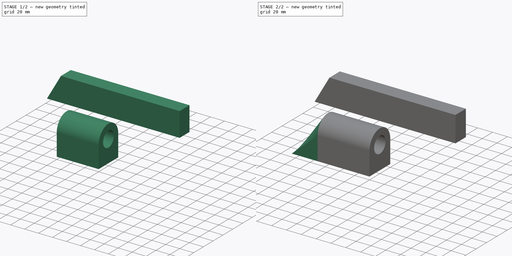
[diagram: build sequence overview — one tinted view per stage of 2, left to right]
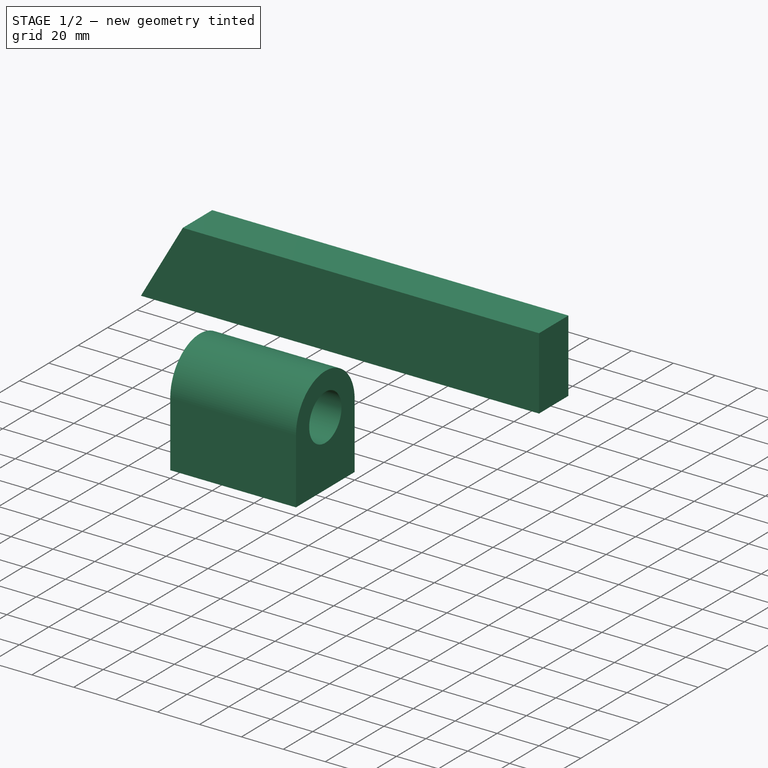
[diagram: stage 1 of 2 — iso view after this stage's code; geometry added in this stage tinted green]
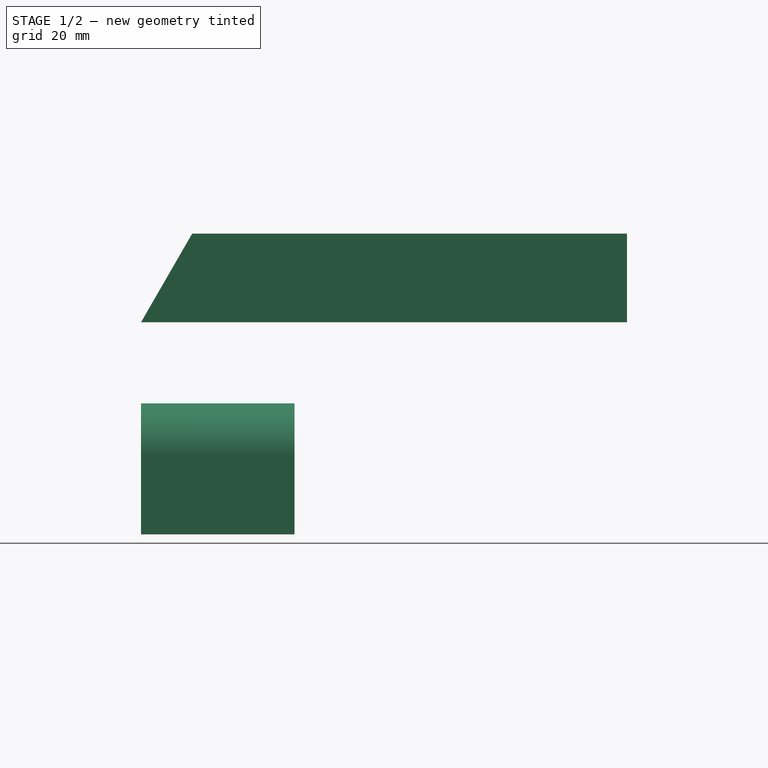
[diagram: stage 1 of 2 — front view after this stage's code; geometry added in this stage tinted green]
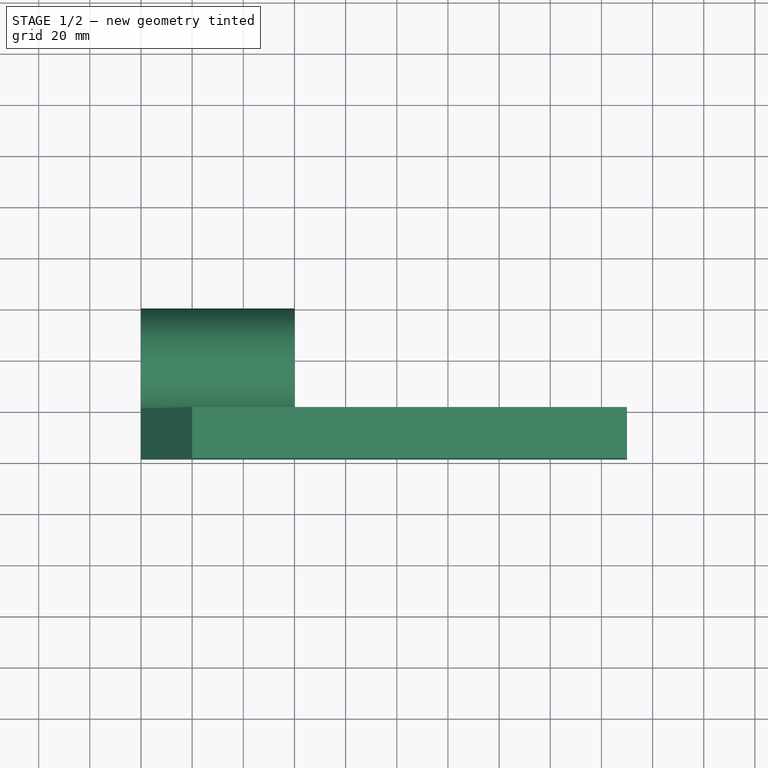
[diagram: stage 1 of 2 — top view after this stage's code; geometry added in this stage tinted green]
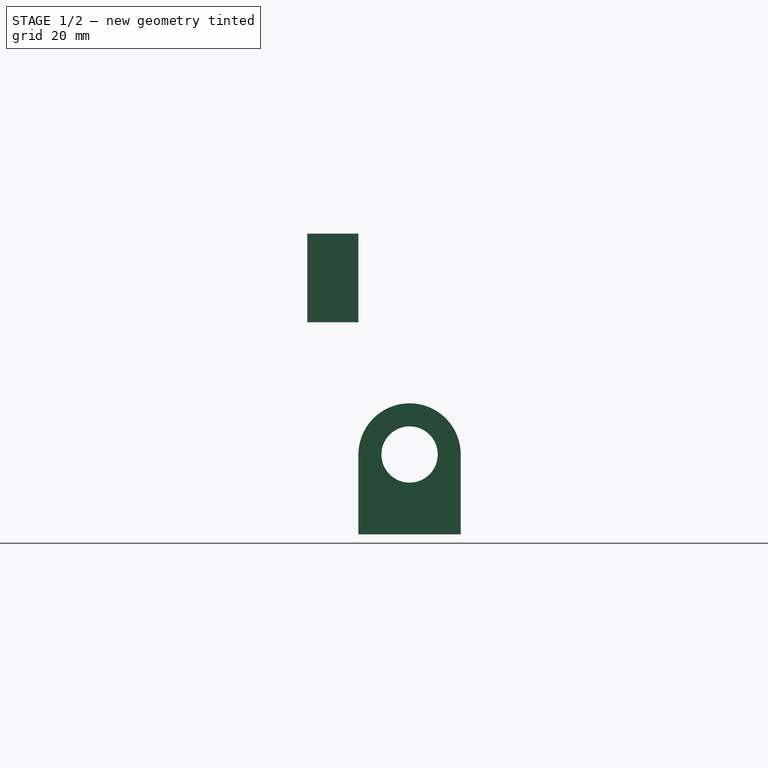
[diagram: stage 1 of 2 — right view after this stage's code; geometry added in this stage tinted green]
FCSTD DOCUMENT  (FreeCAD 0.21R33771 (Git))
Label: Tagger3_test
License: All rights reserved
LicenseURL: http://en.wikipedia.org/wiki/All_rights_reserved
objects: Sketcher::SketchObject×6, PartDesign::Pad×3, PartDesign::Body×3, App::Link×2, App::FeaturePython×2, PartDesign::AdditiveLoft×1
note: 17 computed .brp shape members not serialized (recipe doc carries the construction recipe); baked Part::Feature solids carry a one-line shape summary decoded from their .brp

FEATURE [Sketcher::SketchObject] Sketch
  FullyConstrained = false
  MapMode = 5
  Placement = pos=(0,0,0) rot=(1,0,0;1.5708rad)
  sketch-geometry (4):
    g0: LineSegment StartX=0 StartY=82.8841 StartZ=0 EndX=20 EndY=117.525 EndZ=0
    g1: LineSegment StartX=20 StartY=117.525 StartZ=0 EndX=190 EndY=117.525 EndZ=0
    g2: LineSegment StartX=190 StartY=117.525 StartZ=0 EndX=190 EndY=82.8841 EndZ=0
    g3: LineSegment StartX=0 StartY=82.8841 StartZ=0 EndX=190 EndY=82.8841 EndZ=0
  constraints (11):
    c: Coincident(g0,g1)
    c: Horizontal(g1)
    c: Coincident(g1,g2)
    c: Vertical(g2)
    c: Distance(g0,g0) = 40
    c: DistanceX(g1,g1) = 170
    c: Horizontal(g3)
    c: Coincident(g3,g2)
    c: Coincident(g3,g0)
    c: PointOnObject(g0,g-2)
    c: Angle(g3,g0) = 1.0472
FEATURE [PartDesign::Pad] Pad
  Direction = (0,-1,2e-16)
  Length = 20
  Length2 = 10
  Placement = pos=(0,0,0) rot=(1,0,0;1.5708rad)
  Profile = -> Sketch
  ReferenceAxis = -> Sketch [N_Axis]
  Refine = true
  Type = 0
FEATURE [PartDesign::Body] Body  label="Barrel_left"
  Group = -> [Sketch,Pad]
  Origin = -> Origin001
  Tip = -> Pad
FEATURE [Sketcher::SketchObject] Sketch001
  FullyConstrained = true
  MapMode = 5
  Placement = pos=(0,0,0) rot=(1,0,0;1.5708rad)
  sketch-geometry (4):
    g0: LineSegment StartX=0 StartY=0 StartZ=0 EndX=38.0356 EndY=81.5677 EndZ=0
    g1: LineSegment StartX=38.0356 StartY=81.5677 StartZ=0 EndX=68.0356 EndY=81.5677 EndZ=0
    g2: LineSegment StartX=68.0356 StartY=81.5677 StartZ=0 EndX=30 EndY=0 EndZ=0
    g3: LineSegment StartX=30 StartY=0 StartZ=0 EndX=0 EndY=0 EndZ=0
  constraints (11):
    c: Coincident(g0,g-1)
    c: Coincident(g1,g0)
    c: Horizontal(g1)
    c: Coincident(g2,g1)
    c: Coincident(g3,g2)
    c: Coincident(g3,g0)
    c: Horizontal(g3)
    c: Parallel(g0,g2)
    c: DistanceX(g3,g3) = 30
    c: Distance(g0,g0) = 90
    c: Angle(g3,g0) = 1.13446
FEATURE [Sketcher::SketchObject] Sketch002
  FullyConstrained = false
  MapMode = 5
  Placement = pos=(0,0,0) rot=(0.57735,0.57735,0.57735;2.0944rad)
  sketch-geometry (5):
    g0: LineSegment StartX=0 StartY=0 StartZ=0 EndX=40 EndY=0 EndZ=0
    g1: LineSegment StartX=40 StartY=0 StartZ=0 EndX=40 EndY=31.2 EndZ=0
    g2: LineSegment StartX=0 StartY=0 StartZ=0 EndX=0 EndY=31.2 EndZ=0
    g3: Circle CenterX=20 CenterY=31.2 CenterZ=0 NormalX=0 NormalY=0 NormalZ=1 AngleXU=0 Radius=11
    g4: ArcOfCircle CenterX=20 CenterY=31.2 CenterZ=0 NormalX=0 NormalY=0 NormalZ=1 AngleXU=0 Radius=20 StartAngle=0 EndAngle=3.14159
  constraints (12):
    c: Coincident(g0,g-1)
    c: PointOnObject(g0,g-1)
    c: Coincident(g1,g0)
    c: Vertical(g1)
    c: Coincident(g2,g0)
    c: PointOnObject(g2,g-2)
    c: Coincident(g4,g1)
    c: Diameter(g3) = 22
    c: Coincident(g4,g3)
    c: DistanceX(g0,g0) = 40
    c: Tangent(g4,g2) = 1.5708
    c: Equal(g1,g2)
FEATURE [PartDesign::Pad] Pad002
  Direction = (1,0,0)
  Length = 60
  Length2 = 10
  Placement = pos=(0,0,0) rot=(0.57735,0.57735,0.57735;2.0944rad)
  Profile = -> Sketch002
  ReferenceAxis = -> Sketch002 [N_Axis]
  Refine = true
  Type = 0
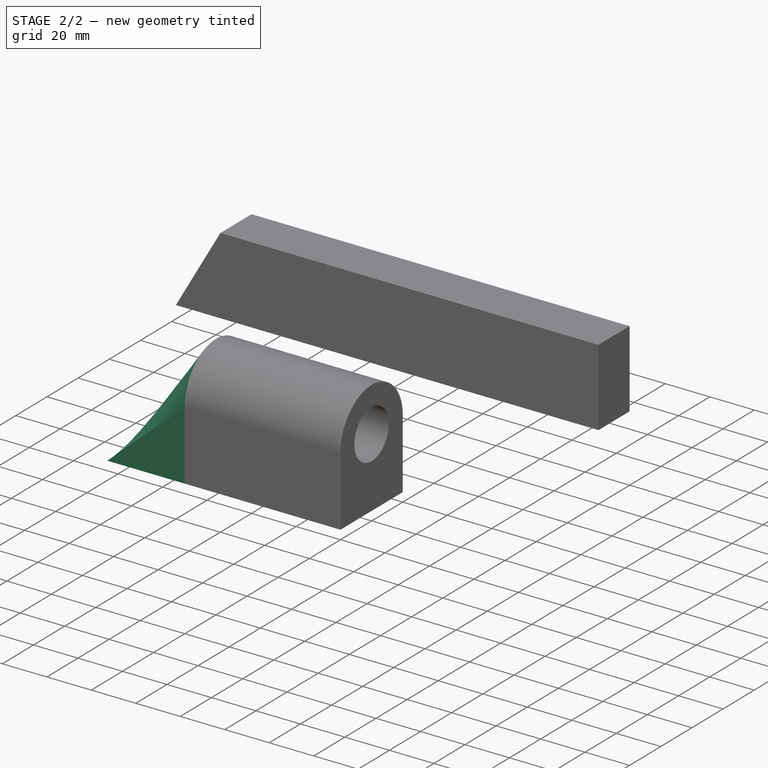
[diagram: stage 2 of 2 — iso view after this stage's code; geometry added in this stage tinted green]
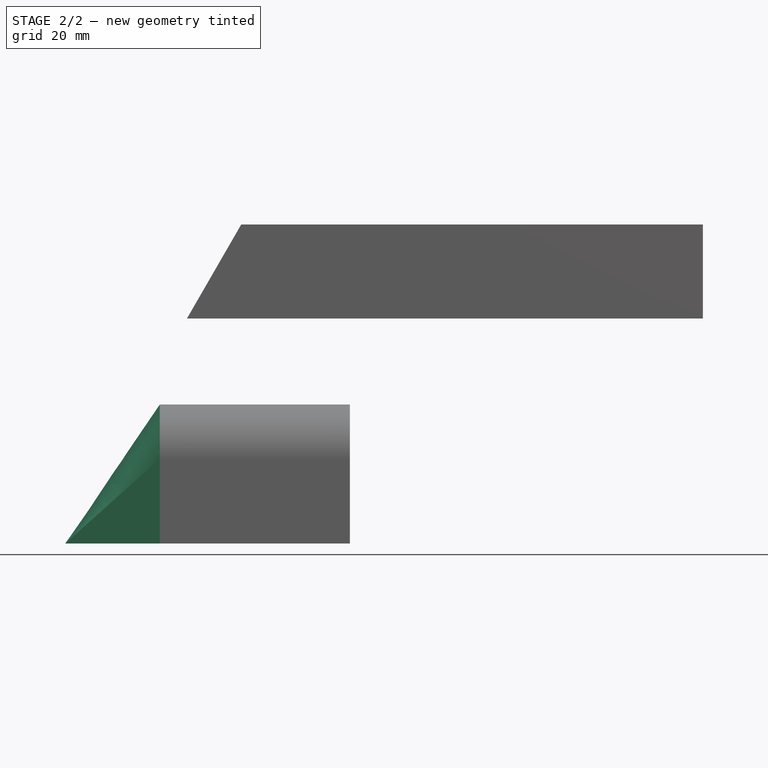
[diagram: stage 2 of 2 — front view after this stage's code; geometry added in this stage tinted green]
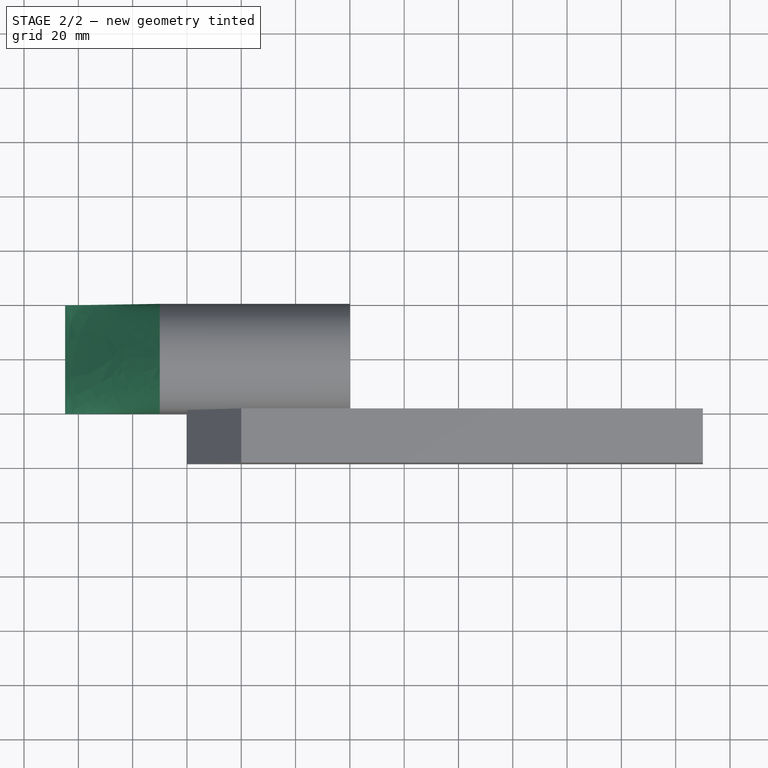
[diagram: stage 2 of 2 — top view after this stage's code; geometry added in this stage tinted green]
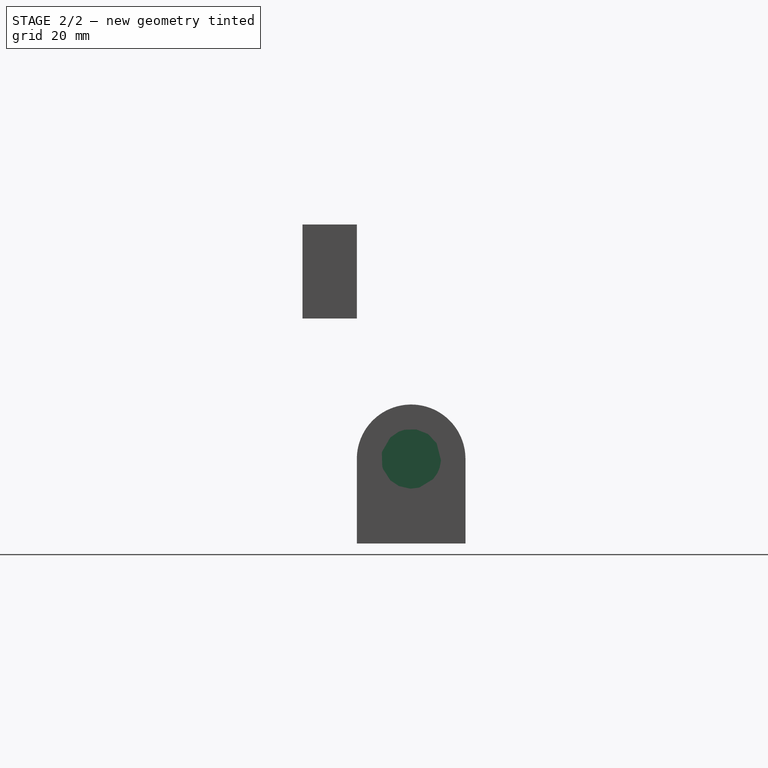
[diagram: stage 2 of 2 — right view after this stage's code; geometry added in this stage tinted green]
FEATURE [App::Link] Grip2  label="Grip002"
  LinkPlacement = pos=(-7.5737,20,1.15e-14) rot=(1,0,0;3.14159rad)
  LinkedObject = -> Body002
  Placement = pos=(-7.5737,20,1.15e-14) rot=(1,0,0;3.14159rad)
FEATURE [Sketcher::SketchObject] Sketch004
  ExternalGeometry = -> [Pad002,Sketch002]
  FullyConstrained = true
  MapMode = 5
  Placement = pos=(0,0,0) rot=(0.57735,0.57735,0.57735;2.0944rad)
  sketch-geometry (4):
    g0: LineSegment StartX=40 StartY=0 StartZ=0 EndX=40 EndY=31.2 EndZ=0
    g1: LineSegment StartX=40 StartY=0 StartZ=0 EndX=0 EndY=0 EndZ=0
    g2: LineSegment StartX=0 StartY=0 StartZ=0 EndX=1.07e-14 EndY=31.2 EndZ=0
    g3: ArcOfCircle CenterX=20 CenterY=31.2 CenterZ=0 NormalX=0 NormalY=0 NormalZ=1 AngleXU=0 Radius=20 StartAngle=0 EndAngle=3.14159
  constraints (9):
    c: Coincident(g0,g-3)
    c: Coincident(g1,g0)
    c: Coincident(g1,g-1)
    c: Coincident(g2,g1)
    c: Coincident(g3,g2)
    c: Coincident(g2,g-5)
    c: Coincident(g3,g0)
    c: Coincident(g0,g-5)
    c: Coincident(g3,g-5)
FEATURE [PartDesign::Pad] Pad003
  BaseFeature = -> Pad002
  Direction = (1,0,0)
  Length = 10
  Length2 = 10
  Placement = pos=(0,0,0) rot=(0.57735,0.57735,0.57735;2.0944rad)
  Profile = -> Sketch004
  ReferenceAxis = -> Sketch004 [N_Axis]
  Refine = true
  Reversed = true
  Type = 0
FEATURE [Sketcher::SketchObject] Sketch003
  ExternalGeometry = -> [Pad003]
  FullyConstrained = false
  MapMode = 5
  sketch-geometry (4):
    g0: LineSegment StartX=-10 StartY=40 StartZ=0 EndX=-44.8526 EndY=40 EndZ=0
    g1: LineSegment StartX=-44.8526 StartY=40 StartZ=0 EndX=-44.8526 EndY=0 EndZ=0
    g2: LineSegment StartX=-44.8526 StartY=0 StartZ=0 EndX=-10 EndY=0 EndZ=0
    g3: LineSegment StartX=-10 StartY=0 StartZ=0 EndX=-10 EndY=40 EndZ=0
  constraints (10):
    c: Coincident(g0,g1)
    c: Coincident(g1,g2)
    c: Coincident(g2,g3)
    c: Coincident(g3,g0)
    c: Horizontal(g0)
    c: Horizontal(g2)
    c: Vertical(g1)
    c: Vertical(g3)
    c: PointOnObject(g1,g-1)
    c: Coincident(g0,g-3)
FEATURE [PartDesign::AdditiveLoft] AdditiveLoft
  BaseFeature = -> Pad003
  Closed = false
  Placement = pos=(0,0,0) rot=(0.57735,0.57735,0.57735;2.0944rad)
  Profile = -> Sketch003
  Refine = true
  Ruled = false
  Sections = -> [Pad003]
FEATURE [PartDesign::Body] Body002  label="Grip2"
  Group = -> [Sketch002,Pad002,Sketch003,Sketch004,Pad003,AdditiveLoft]
  Origin = -> Origin003
  Tip = -> AdditiveLoft
FEATURE [App::Link] Barrel_left  label="Barrel_left001"
  LinkedObject = -> Body
FEATURE [App::FeaturePython] GroundedJoint  # Assembly grounded joint (typed FeaturePython)
  ObjectToGround = -> Barrel_left
FEATURE [App::FeaturePython] Joint  label="StarrerVerbund"  # Assembly joint (typed FeaturePython)
  Activated = true
  AngleMax = 0
  AngleMin = 0
  Detach1 = false
  Detach2 = false
  Distance = 0
  Distance2 = 0
  EnableAngleMax = false
  EnableAngleMin = false
  EnableLengthMax = false
  EnableLengthMin = false
  JointType = 0 (Fixed)
  LengthMax = 0
  LengthMin = 0
  Offset1 = pos=(0,0,0) rot=(0,0,1;1.5708rad)
  Placement1 = pos=(0,0,0) rot=(0,0,1;1.5708rad)
  Placement2 = pos=(7.5737,20,0) rot=(-0.707107,0.707107,0;3.14159rad)
FEATURE [Sketcher::SketchObject] Sketch005
  FullyConstrained = true
  MapMode = 5
FEATURE [PartDesign::Body] Body001  label="Grip"
  Group = -> [Sketch001,Sketch005]
  Origin = -> Origin002
  Placement = pos=(0,0,22) rot=(0,0,1;0rad)
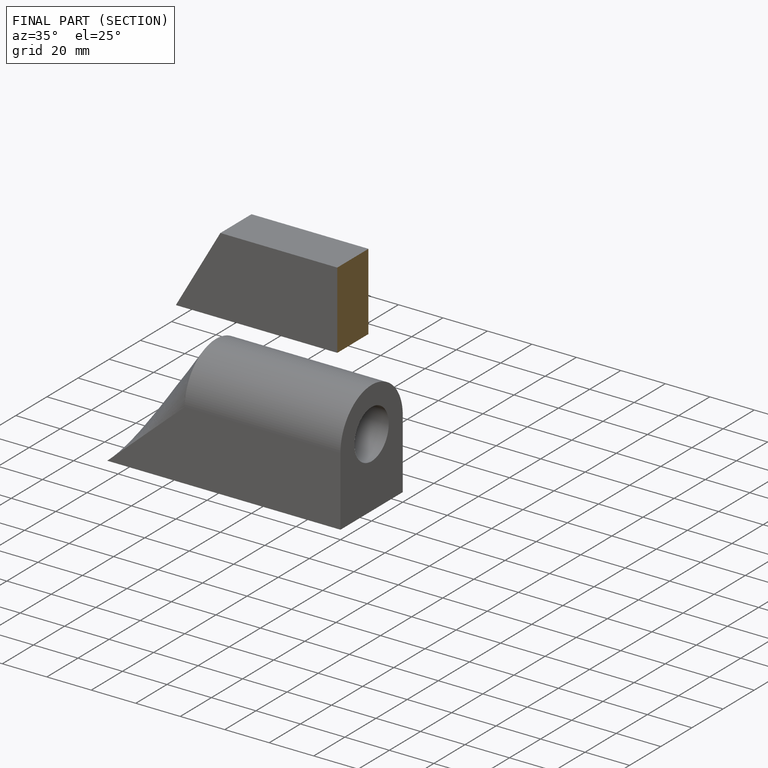
[diagram: finished part — half-section view (interior)]
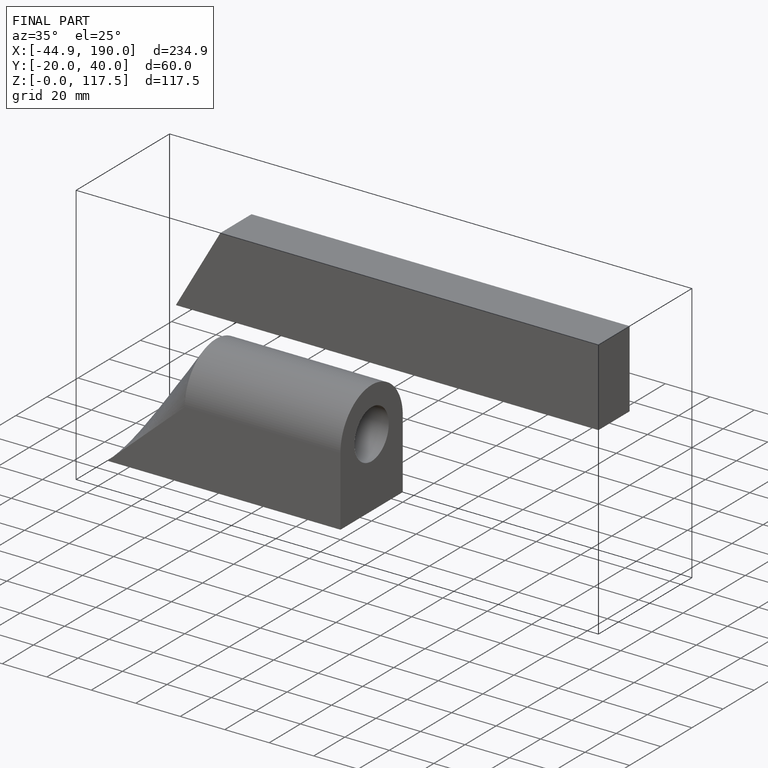
[diagram: finished part — iso view with bounding-box wireframe]
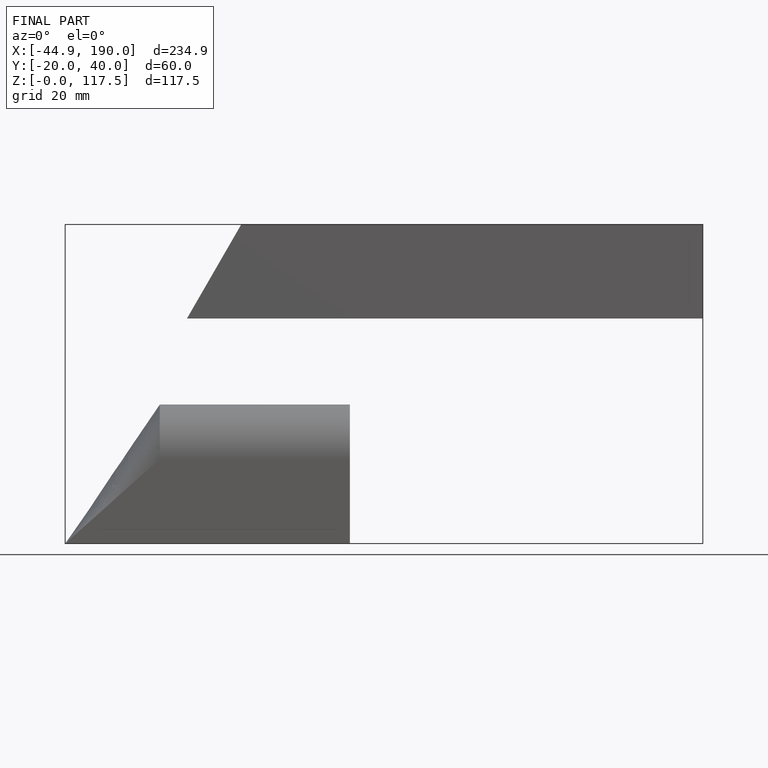
[diagram: finished part — front view with bounding-box wireframe]
